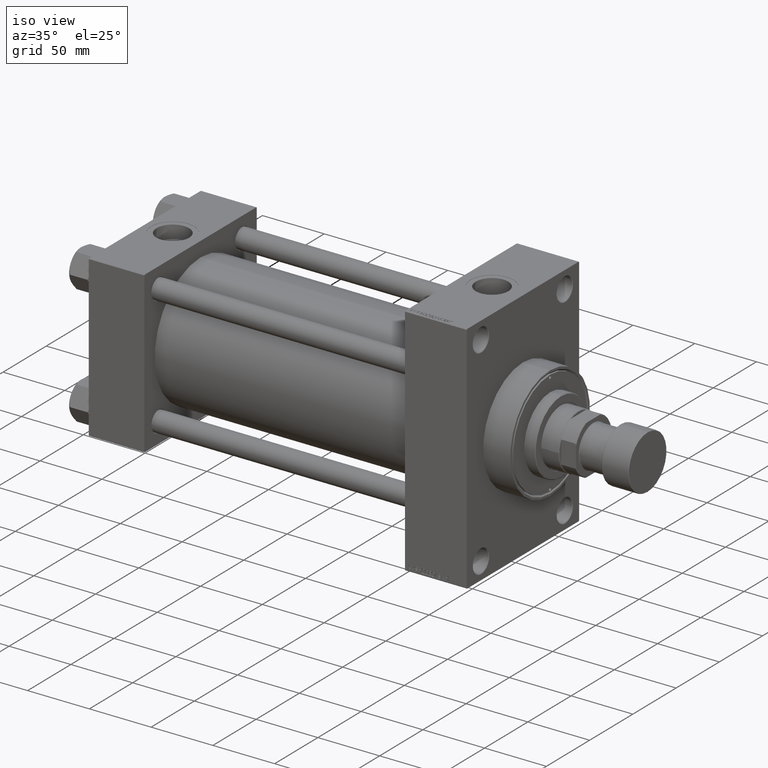
[diagram: clean part render]
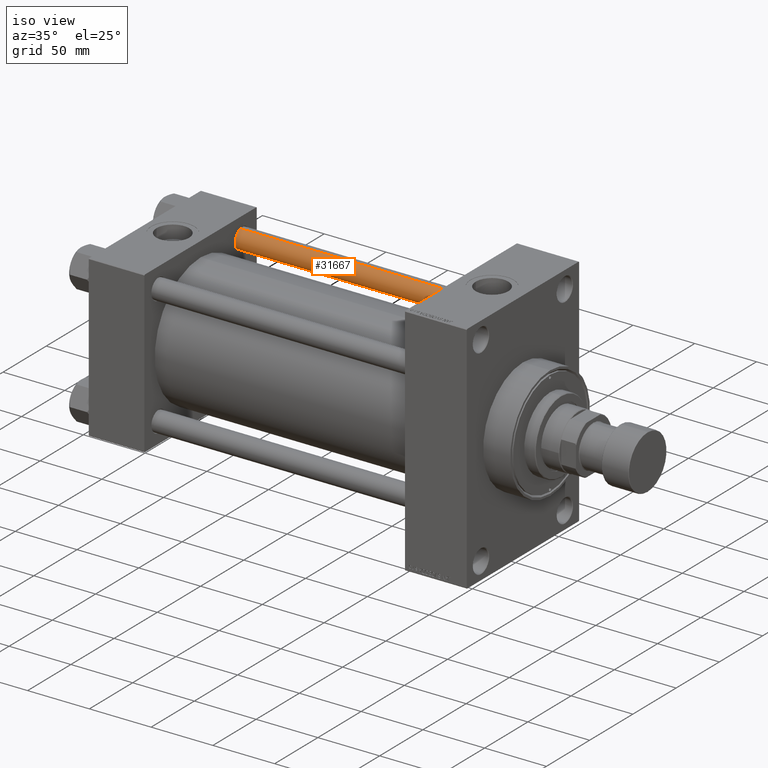
[diagram: same view with one face highlighted and labeled with its STEP entity id]
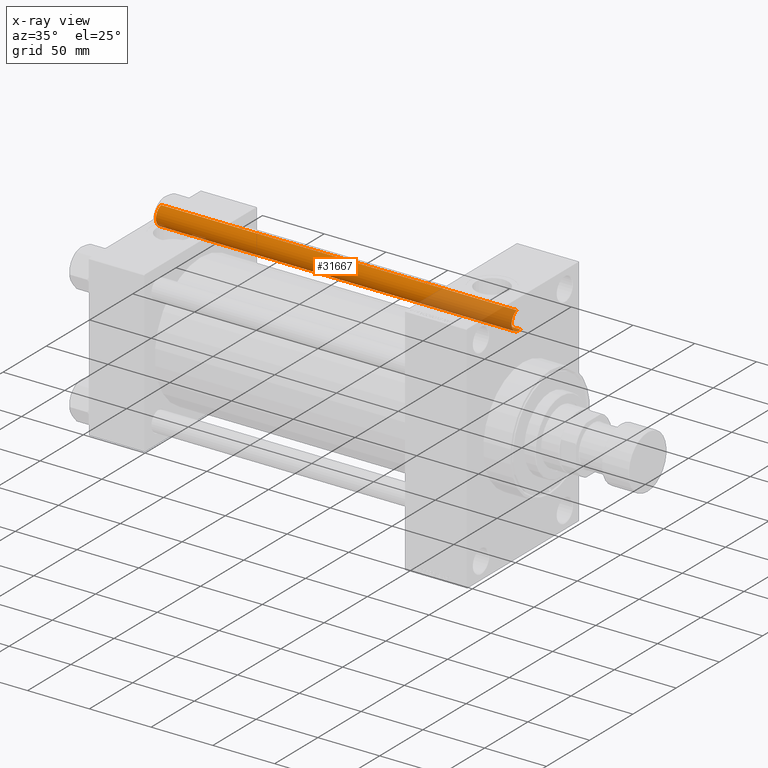
[diagram: x-ray of the same camera — body ghosted, the highlighted face saturated]
A machine part, iso view. The second image highlights one B-rep face of the part: STEP entity #31667.
The next image is the same camera in x-ray: the body ghosted, the highlighted face saturated — about 24% of this face is hidden behind the body in this view.
In plain terms, the highlighted cylindrical surface (edge-blend (fillet) strip) has radius 8 mm, axis along (-1, -0, 0).
Its self-contained STEP definition (entity closure, byte-faithful):
#357 = EDGE_LOOP ( 'NONE', ( #16025, #15982, #10420, #3373 ) ) ;
#1445 = DIRECTION ( 'NONE',  ( -1.000000000000000000, 0.000000000000000000, 0.000000000000000000 ) ) ;
#1675 = CYLINDRICAL_SURFACE ( 'NONE', #10991, 8.000000000000000000 ) ;
#2032 = VERTEX_POINT ( 'NONE', #7034 ) ;
#2878 = CARTESIAN_POINT ( 'NONE',  ( 8.000000000000000000, 9.797174393178825657E-16, 289.0000000000000000 ) ) ;
#3373 = ORIENTED_EDGE ( 'NONE', *, *, #25976, .T. ) ;
#7034 = CARTESIAN_POINT ( 'NONE',  ( 8.000000000000000000, 9.797174393178825657E-16, 0.5000000000000004441 ) ) ;
#7579 = DIRECTION ( 'NONE',  ( -0.000000000000000000, -0.000000000000000000, -1.000000000000000000 ) ) ;
#7689 = CARTESIAN_POINT ( 'NONE',  ( 0.000000000000000000, 0.000000000000000000, 288.5000000000000000 ) ) ;
#9270 = CIRCLE ( 'NONE', #23345, 8.000000000000000000 ) ;
#9489 = CARTESIAN_POINT ( 'NONE',  ( 8.000000000000000000, 9.797174393178825657E-16, 288.5000000000000000 ) ) ;
#9499 = DIRECTION ( 'NONE',  ( -0.000000000000000000, -0.000000000000000000, 1.000000000000000000 ) ) ;
#10420 = ORIENTED_EDGE ( 'NONE', *, *, #48204, .T. ) ;
#10991 = AXIS2_PLACEMENT_3D ( 'NONE', #15609, #38089, #1445 ) ;
#11344 = VERTEX_POINT ( 'NONE', #9489 ) ;
#14348 = LINE ( 'NONE', #2878, #46504 ) ;
#15457 = AXIS2_PLACEMENT_3D ( 'NONE', #28086, #9499, #18530 ) ;
#15609 = CARTESIAN_POINT ( 'NONE',  ( 0.000000000000000000, 0.000000000000000000, 289.0000000000000000 ) ) ;
#15982 = ORIENTED_EDGE ( 'NONE', *, *, #28567, .T. ) ;
#16025 = ORIENTED_EDGE ( 'NONE', *, *, #21160, .F. ) ;
#18086 = LINE ( 'NONE', #41054, #30972 ) ;
#18200 = CARTESIAN_POINT ( 'NONE',  ( -8.000000000000000000, 0.000000000000000000, 0.5000000000000004441 ) ) ;
#18530 = DIRECTION ( 'NONE',  ( 1.000000000000000000, 0.000000000000000000, 0.000000000000000000 ) ) ;
#19273 = FACE_OUTER_BOUND ( 'NONE', #357, .T. ) ;
#19630 = DIRECTION ( 'NONE',  ( 1.000000000000000000, 0.000000000000000000, 0.000000000000000000 ) ) ;
#21160 = EDGE_CURVE ( 'NONE', #11344, #2032, #14348, .T. ) ;
#22596 = DIRECTION ( 'NONE',  ( 0.000000000000000000, 0.000000000000000000, -1.000000000000000000 ) ) ;
#23345 = AXIS2_PLACEMENT_3D ( 'NONE', #7689, #22596, #19630 ) ;
#23909 = VERTEX_POINT ( 'NONE', #18200 ) ;
#25976 = EDGE_CURVE ( 'NONE', #23909, #2032, #36521, .T. ) ;
#26324 = DIRECTION ( 'NONE',  ( -0.000000000000000000, -0.000000000000000000, -1.000000000000000000 ) ) ;
#28086 = CARTESIAN_POINT ( 'NONE',  ( 0.000000000000000000, 0.000000000000000000, 0.5000000000000004441 ) ) ;
#28567 = EDGE_CURVE ( 'NONE', #11344, #29560, #9270, .T. ) ;
#29560 = VERTEX_POINT ( 'NONE', #39897 ) ;
#30972 = VECTOR ( 'NONE', #7579, 1000.000000000000000 ) ;
#31667 = ADVANCED_FACE ( 'NONE', ( #19273 ), #1675, .T. ) ;
#36521 = CIRCLE ( 'NONE', #15457, 8.000000000000000000 ) ;
#38089 = DIRECTION ( 'NONE',  ( -0.000000000000000000, -0.000000000000000000, -1.000000000000000000 ) ) ;
#39897 = CARTESIAN_POINT ( 'NONE',  ( -8.000000000000000000, 0.000000000000000000, 288.5000000000000000 ) ) ;
#41054 = CARTESIAN_POINT ( 'NONE',  ( -8.000000000000000000, 0.000000000000000000, 289.0000000000000000 ) ) ;
#46504 = VECTOR ( 'NONE', #26324, 1000.000000000000000 ) ;
#48204 = EDGE_CURVE ( 'NONE', #29560, #23909, #18086, .T. ) ;